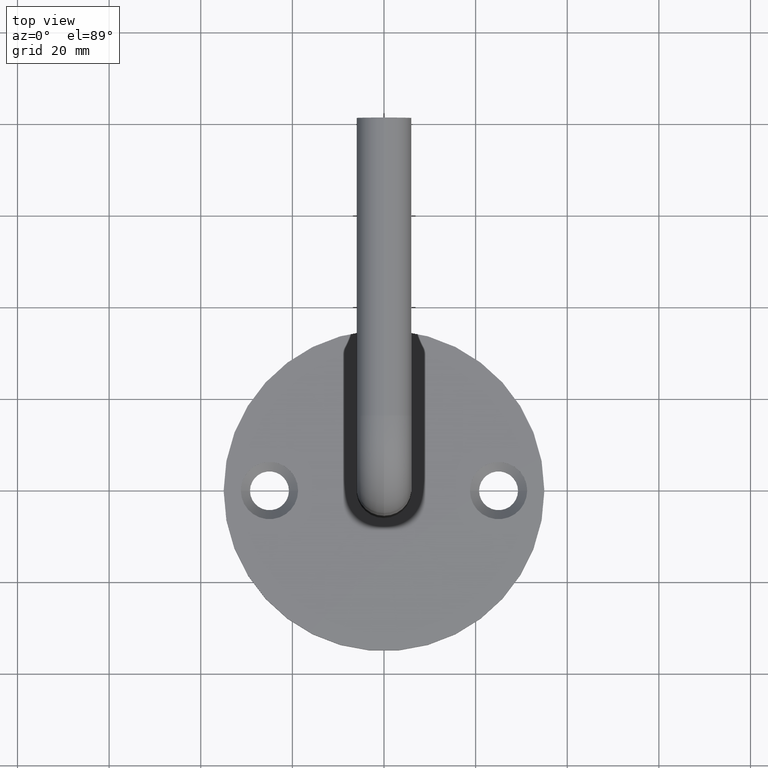
[diagram: clean part render]
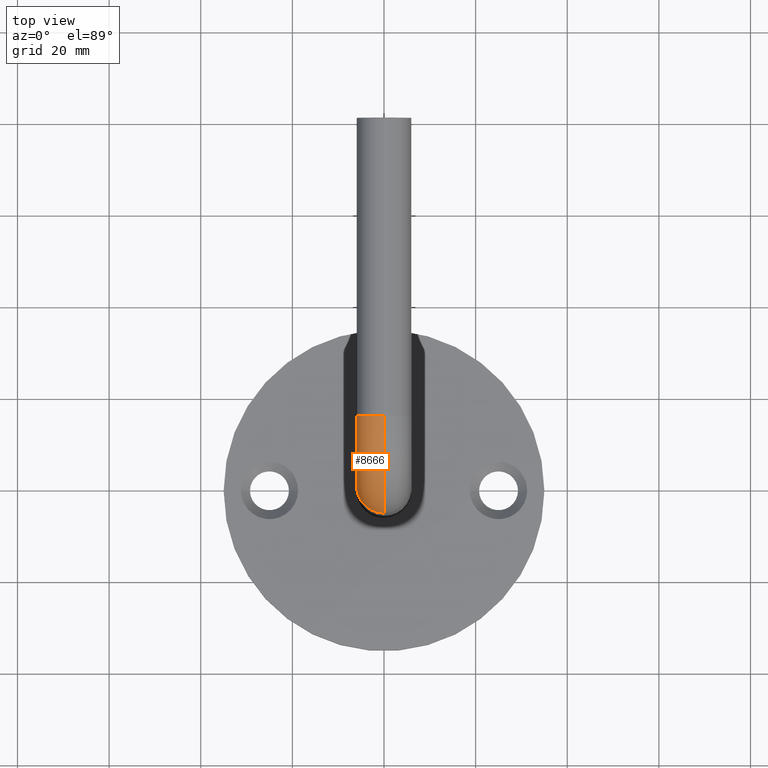
[diagram: same view with one face highlighted and labeled with its STEP entity id]
A machine part, top view. The second image highlights one B-rep face of the part: STEP entity #8666.
In plain terms, the highlighted toroidal blend (fillet) surface has major radius 15 mm and minor (blend) radius 6 mm.
Its self-contained STEP definition (entity closure, byte-faithful):
#466 = ORIENTED_EDGE ( 'NONE', *, *, #10385, .F. ) ;
#742 = AXIS2_PLACEMENT_3D ( 'NONE', #5887, #5843, #10331 ) ;
#762 = CARTESIAN_POINT ( 'NONE',  ( 0.000000000000000000, 15.00000000000009592, 80.00000000000000000 ) ) ;
#1756 = AXIS2_PLACEMENT_3D ( 'NONE', #14690, #8926, #12567 ) ;
#2261 = DIRECTION ( 'NONE',  ( 0.000000000000000000, 0.000000000000000000, 1.000000000000000000 ) ) ;
#2308 = EDGE_CURVE ( 'NONE', #12459, #14017, #12892, .T. ) ;
#2783 = CARTESIAN_POINT ( 'NONE',  ( 0.000000000000000000, 15.00000000000018296, 86.00000000000000000 ) ) ;
#4143 = DIRECTION ( 'NONE',  ( 0.000000000000000000, -1.000000000000000000, 1.437166698016966745E-14 ) ) ;
#4972 = AXIS2_PLACEMENT_3D ( 'NONE', #762, #4143, #12258 ) ;
#5664 = AXIS2_PLACEMENT_3D ( 'NONE', #12375, #12523, #12420 ) ;
#5765 = CIRCLE ( 'NONE', #1756, 21.00000000000000355 ) ;
#5843 = DIRECTION ( 'NONE',  ( 0.000000000000000000, 0.000000000000000000, -1.000000000000000000 ) ) ;
#5887 = CARTESIAN_POINT ( 'NONE',  ( 0.000000000000000000, -7.960204194457784630E-15, 64.99999999999988631 ) ) ;
#6358 = CARTESIAN_POINT ( 'NONE',  ( 0.000000000000000000, 5.999999999999992895, 64.99999999999988631 ) ) ;
#6380 = EDGE_CURVE ( 'NONE', #7851, #14017, #10672, .T. ) ;
#7647 = FACE_OUTER_BOUND ( 'NONE', #11708, .T. ) ;
#7851 = VERTEX_POINT ( 'NONE', #2783 ) ;
#8666 = ADVANCED_FACE ( 'NONE', ( #7647 ), #12725, .T. ) ;
#8926 = DIRECTION ( 'NONE',  ( -1.000000000000000000, -0.000000000000000000, 0.000000000000000000 ) ) ;
#9014 = ORIENTED_EDGE ( 'NONE', *, *, #6380, .T. ) ;
#9874 = ORIENTED_EDGE ( 'NONE', *, *, #2308, .F. ) ;
#10166 = ORIENTED_EDGE ( 'NONE', *, *, #14330, .T. ) ;
#10331 = DIRECTION ( 'NONE',  ( -1.000000000000000000, 0.000000000000000000, 0.000000000000000000 ) ) ;
#10385 = EDGE_CURVE ( 'NONE', #14761, #12459, #13785, .T. ) ;
#10672 = CIRCLE ( 'NONE', #4972, 6.000000000000000888 ) ;
#11676 = DIRECTION ( 'NONE',  ( -1.000000000000000000, -0.000000000000000000, 0.000000000000000000 ) ) ;
#11708 = EDGE_LOOP ( 'NONE', ( #466, #10166, #9014, #9874 ) ) ;
#11723 = CARTESIAN_POINT ( 'NONE',  ( 7.347880794884120722E-16, 14.99999999999999112, 65.00000000000000000 ) ) ;
#11962 = AXIS2_PLACEMENT_3D ( 'NONE', #11723, #11676, #2261 ) ;
#12177 = CARTESIAN_POINT ( 'NONE',  ( 7.347880794884114806E-16, 15.00000000000001066, 74.00000000000000000 ) ) ;
#12258 = DIRECTION ( 'NONE',  ( -1.000000000000000000, 0.000000000000000000, 0.000000000000000000 ) ) ;
#12375 = CARTESIAN_POINT ( 'NONE',  ( 0.000000000000000000, 14.99999999999999112, 65.00000000000000000 ) ) ;
#12420 = DIRECTION ( 'NONE',  ( 0.000000000000000000, 0.000000000000000000, 1.000000000000000000 ) ) ;
#12459 = VERTEX_POINT ( 'NONE', #6358 ) ;
#12523 = DIRECTION ( 'NONE',  ( -1.000000000000000000, -0.000000000000000000, 0.000000000000000000 ) ) ;
#12567 = DIRECTION ( 'NONE',  ( 0.000000000000000000, 0.000000000000000000, 1.000000000000000000 ) ) ;
#12633 = CARTESIAN_POINT ( 'NONE',  ( 7.347880794884124666E-16, -6.000000000000009770, 64.99999999999988631 ) ) ;
#12725 = TOROIDAL_SURFACE ( 'NONE', #5664, 15.00000000000000000, 6.000000000000000888 ) ;
#12892 = CIRCLE ( 'NONE', #11962, 8.999999999999994671 ) ;
#13785 = CIRCLE ( 'NONE', #742, 6.000000000000000888 ) ;
#14017 = VERTEX_POINT ( 'NONE', #12177 ) ;
#14330 = EDGE_CURVE ( 'NONE', #14761, #7851, #5765, .T. ) ;
#14690 = CARTESIAN_POINT ( 'NONE',  ( 0.000000000000000000, 14.99999999999999112, 65.00000000000000000 ) ) ;
#14761 = VERTEX_POINT ( 'NONE', #12633 ) ;